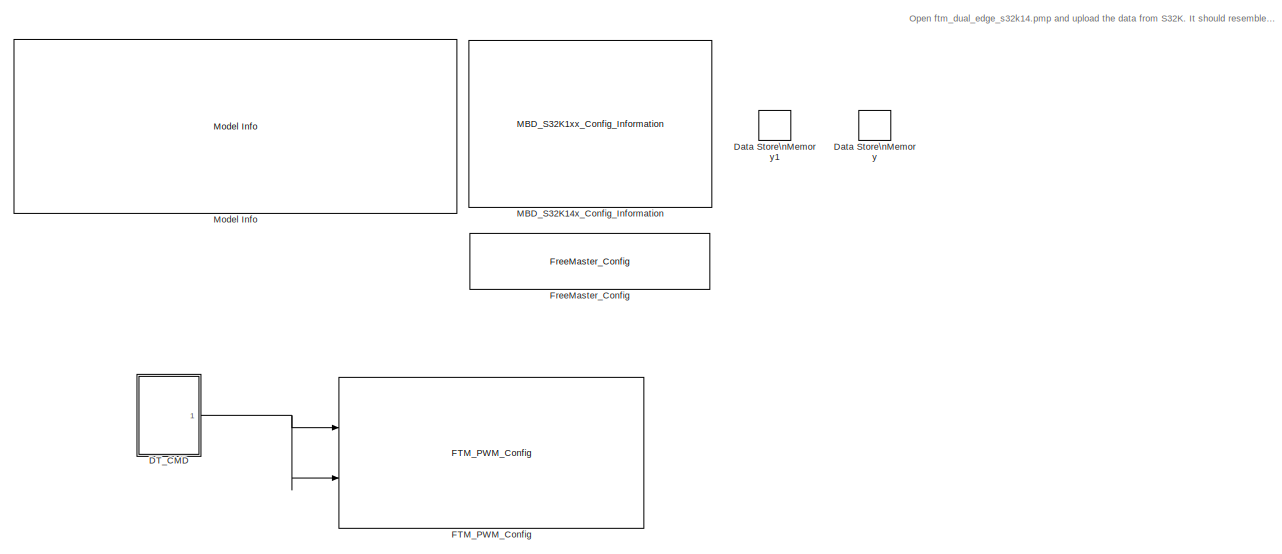
[diagram: root canvas - part 1/2, full width, top band]
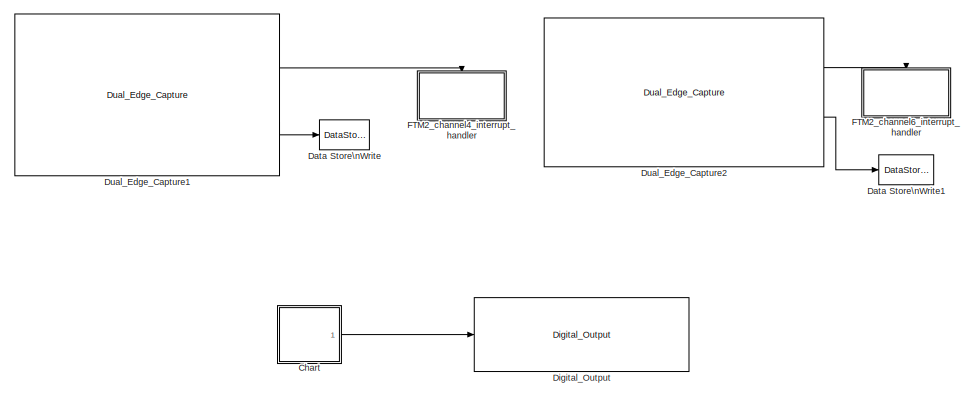
[diagram: root canvas - part 2/2, bottom center region]
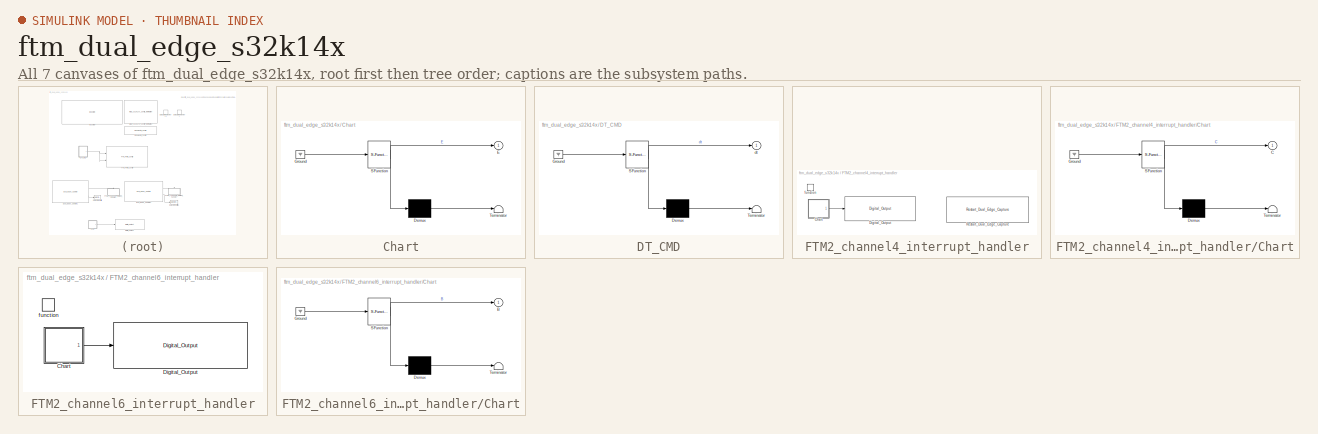
[diagram: thumbnail index - all 7 canvases of the model, root first then tree order]
MODEL ftm_dual_edge_s32k14x
KIND model
CONFIG InitFcn = mbd_s32k_consistency_checks(bdroot(gcs));
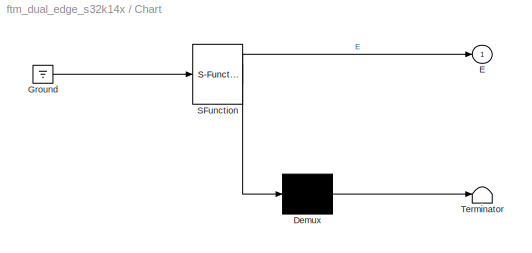
BLOCK [SubSystem] Chart
  ErrorFcn = Stateflow.Translate.translate
  PermitHierarchicalResolution = ExplicitOnly
  Ports = [0, 1]
  RequestExecContextInheritance = off
  SFBlockType = Chart
  SID = 109
  TreatAsAtomicUnit = on
  Variant = off
BLOCK [Demux] Chart/ Demux 
  Outputs = 1
  Ports = [1, 1]
  SID = 109::36
BLOCK [Outport] Chart/ E
  IconDisplay = Port number
  SID = 109::6
BLOCK [Ground] Chart/ Ground 
  SID = 109::38
BLOCK [S-Function] Chart/ SFunction 
  EnableBusSupport = off
  FunctionName = sf_sfun
  PortCounts = [1 2]
  Ports = [1, 2]
  SFcnIsStateOwnerBlock = off
  SFunctionDeploymentMode = off
  SID = 109::35
  Tag = Stateflow S-Function ftm_dual_edge_s32k14x 4
BLOCK [Terminator] Chart/ Terminator 
  SID = 109::37
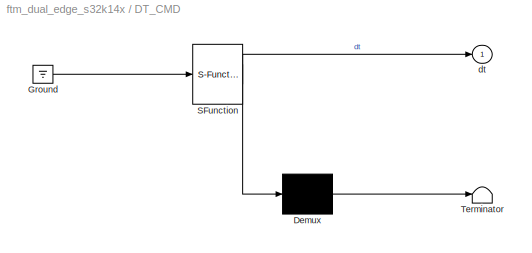
BLOCK [SubSystem] DT_CMD
  ErrorFcn = Stateflow.Translate.translate
  PermitHierarchicalResolution = ExplicitOnly
  Ports = [0, 1]
  Priority = 0
  RequestExecContextInheritance = off
  SFBlockType = Chart
  SID = 101
  TreatAsAtomicUnit = on
  Variant = off
BLOCK [Demux] DT_CMD/ Demux 
  Outputs = 1
  Ports = [1, 1]
  SID = 101::68
BLOCK [Ground] DT_CMD/ Ground 
  SID = 101::70
BLOCK [S-Function] DT_CMD/ SFunction 
  EnableBusSupport = off
  FunctionName = sf_sfun
  PortCounts = [1 2]
  Ports = [1, 2]
  SFcnIsStateOwnerBlock = off
  SFunctionDeploymentMode = off
  SID = 101::67
  Tag = Stateflow S-Function ftm_dual_edge_s32k14x 2
BLOCK [Terminator] DT_CMD/ Terminator 
  SID = 101::69
BLOCK [Outport] DT_CMD/dt
  IconDisplay = Port number
  SID = 101::5
BLOCK [DataStoreMemory] Data Store\nMemory
  DataStoreName = Period
  OutDataTypeStr = uint16
  ReadBeforeWriteMsg = warning
  SID = 105
  ShowAdditionalParam = off
  WriteAfterReadMsg = warning
  WriteAfterWriteMsg = warning
BLOCK [DataStoreMemory] Data Store\nMemory1
  DataStoreName = Pulse
  OutDataTypeStr = uint16
  ReadBeforeWriteMsg = warning
  SID = 107
  ShowAdditionalParam = off
  WriteAfterReadMsg = warning
  WriteAfterWriteMsg = warning
BLOCK [DataStoreWrite] Data Store\nWrite
  DataStoreName = Period
  Ports = [1]
  SID = 106
BLOCK [DataStoreWrite] Data Store\nWrite1
  DataStoreName = Pulse
  Ports = [1]
  SID = 108
BLOCK [Reference] Digital_Output  REF=mbd_s32k1xx_ec_toolbox/GPIO Blocks/Digital_Output
  Ports = [1]
  SID = 110
  SourceBlock = mbd_s32k1xx_ec_toolbox/GPIO Blocks/Digital_Output
  SourceType = gpio_s32k_output
  drive_strength = Low
  gpio_pin = PTD0: [PTD0 | Port D I/O]
  init_val = Low
BLOCK [Reference] Dual_Edge_Capture1  REF=mbd_s32k1xx_ec_toolbox/Motor Control Blocks/FTM Blocks/Dual_Edge_Capture
  Ports = [0, 2]
  Priority = 2
  SID = 87
  SourceBlock = mbd_s32k1xx_ec_toolbox/Motor Control Blocks/FTM Blocks/Dual_Edge_Capture
  SourceType = FTM_s32k_dual_edge_capture_block
  c_mode = One-Shot
  channel = 4-5
  filter_en = off
  filter_value = 0
  ftmModule = 2
  isrlevel = 12
  mesur = period (rising - rising)
  pinFtmCh = PTD13: [FTM2_CH4 | FTM Channel]
  prescaler = 1
BLOCK [Reference] Dual_Edge_Capture2  REF=mbd_s32k1xx_ec_toolbox/Motor Control Blocks/FTM Blocks/Dual_Edge_Capture
  Ports = [0, 2]
  Priority = 3
  SID = 89
  SourceBlock = mbd_s32k1xx_ec_toolbox/Motor Control Blocks/FTM Blocks/Dual_Edge_Capture
  SourceType = FTM_s32k_dual_edge_capture_block
  c_mode = Continuous
  channel = 6-7
  filter_en = off
  filter_value = 0
  ftmModule = 2
  isrlevel = 12
  mesur = positive pulse (rising - falling)
  pinFtmCh = PTE15: [FTM2_CH6 | FTM Channel]
  prescaler = 1
BLOCK [SubSystem] FTM2_channel4_interrupt_handler
  Ports = [0, 0, 0, 1]
  RTWSystemCode = Nonreusable function
  RequestExecContextInheritance = off
  SID = 91
  TreatAsAtomicUnit = on
  Variant = off
BLOCK [SubSystem] FTM2_channel4_interrupt_handler/Chart
  ErrorFcn = Stateflow.Translate.translate
  PermitHierarchicalResolution = ExplicitOnly
  Ports = [0, 1]
  RequestExecContextInheritance = off
  SFBlockType = Chart
  SID = 93
  TreatAsAtomicUnit = on
  Variant = off
BLOCK [Outport] FTM2_channel4_interrupt_handler/Chart/ C
  IconDisplay = Port number
  SID = 93::6
BLOCK [Demux] FTM2_channel4_interrupt_handler/Chart/ Demux 
  Outputs = 1
  Ports = [1, 1]
  SID = 93::36
BLOCK [Ground] FTM2_channel4_interrupt_handler/Chart/ Ground 
  SID = 93::38
BLOCK [S-Function] FTM2_channel4_interrupt_handler/Chart/ SFunction 
  EnableBusSupport = off
  FunctionName = sf_sfun
  PortCounts = [1 2]
  Ports = [1, 2]
  SFcnIsStateOwnerBlock = off
  SFunctionDeploymentMode = off
  SID = 93::35
  Tag = Stateflow S-Function ftm_dual_edge_s32k14x 1
BLOCK [Terminator] FTM2_channel4_interrupt_handler/Chart/ Terminator 
  SID = 93::37
BLOCK [Reference] FTM2_channel4_interrupt_handler/Digital_Output  REF=mbd_s32k1xx_ec_toolbox/GPIO Blocks/Digital_Output
  Ports = [1]
  SID = 94
  SourceBlock = mbd_s32k1xx_ec_toolbox/GPIO Blocks/Digital_Output
  SourceType = gpio_s32k_output
  drive_strength = Low
  gpio_pin = PTA16: [PTA16 | Port A I/O]
  init_val = Low
BLOCK [Reference] FTM2_channel4_interrupt_handler/Restart_Dual_Edge_Capture  REF=mbd_s32k1xx_ec_toolbox/Motor Control Blocks/FTM Blocks/Restart_Dual_Edge_Capture
  Ports = []
  Priority = 1
  SID = 114
  SourceBlock = mbd_s32k1xx_ec_toolbox/Motor Control Blocks/FTM Blocks/Restart_Dual_Edge_Capture
  SourceType = FTM_s32k_dual_edge_restart_block
  channel = 4-5
  ftmModule = 2
BLOCK [TriggerPort] FTM2_channel4_interrupt_handler/function
  Ports = []
  SID = 92
  StatesWhenEnabling = held
  TriggerType = function-call
  VariantControl = Variant
BLOCK [SubSystem] FTM2_channel6_interrupt_handler
  Ports = [0, 0, 0, 1]
  RTWSystemCode = Nonreusable function
  RequestExecContextInheritance = off
  SID = 76
  TreatAsAtomicUnit = on
  Variant = off
BLOCK [SubSystem] FTM2_channel6_interrupt_handler/Chart
  ErrorFcn = Stateflow.Translate.translate
  PermitHierarchicalResolution = ExplicitOnly
  Ports = [0, 1]
  RequestExecContextInheritance = off
  SFBlockType = Chart
  SID = 78
  TreatAsAtomicUnit = on
  Variant = off
BLOCK [Outport] FTM2_channel6_interrupt_handler/Chart/ B
  IconDisplay = Port number
  SID = 78::6
BLOCK [Demux] FTM2_channel6_interrupt_handler/Chart/ Demux 
  Outputs = 1
  Ports = [1, 1]
  SID = 78::36
BLOCK [Ground] FTM2_channel6_interrupt_handler/Chart/ Ground 
  SID = 78::38
BLOCK [S-Function] FTM2_channel6_interrupt_handler/Chart/ SFunction 
  EnableBusSupport = off
  FunctionName = sf_sfun
  PortCounts = [1 2]
  Ports = [1, 2]
  SFcnIsStateOwnerBlock = off
  SFunctionDeploymentMode = off
  SID = 78::35
  Tag = Stateflow S-Function ftm_dual_edge_s32k14x 3
BLOCK [Terminator] FTM2_channel6_interrupt_handler/Chart/ Terminator 
  SID = 78::37
BLOCK [Reference] FTM2_channel6_interrupt_handler/Digital_Output  REF=mbd_s32k1xx_ec_toolbox/GPIO Blocks/Digital_Output
  Ports = [1]
  SID = 80
  SourceBlock = mbd_s32k1xx_ec_toolbox/GPIO Blocks/Digital_Output
  SourceType = gpio_s32k_output
  drive_strength = Low
  gpio_pin = PTA15: [PTA15 | Port A I/O]
  init_val = Low
BLOCK [TriggerPort] FTM2_channel6_interrupt_handler/function
  Ports = []
  SID = 77
  StatesWhenEnabling = held
  TriggerType = function-call
  VariantControl = Variant
BLOCK [Reference] FTM_PWM_Config  REF=mbd_s32k1xx_ec_toolbox/Motor Control Blocks/FTM Blocks/FTM_PWM_Config
  Ports = [2]
  Priority = 1
  SID = 104
  SourceBlock = mbd_s32k1xx_ec_toolbox/Motor Control Blocks/FTM Blocks/FTM_PWM_Config
  SourceType = FTM_s32k_pwm_config_block
  chTrigger0 = off
  chTrigger1 = off
  chTrigger2 = off
  chTrigger3 = off
  chTrigger4 = off
  chTrigger5 = off
  chTrigger6 = off
  chTrigger7 = off
  chan0En = on
  chan0Type = Independent
  chan2En = off
  chan2Type = Independent
  chan4En = off
  chan4Type = Independent
  chan6En = off
  chan6Type = Independent
  chnMatch0 = off
  chnMatch1 = off
  chnMatch2 = off
  chnMatch3 = off
  chnMatch4 = off
  chnMatch5 = off
  chnMatch6 = off
  chnMatch7 = off
  deadtimeNs = 0
  deadtimePrescaler = Divide by 1
  deadtimeTicks = 0
  deadtimeUnits = Nanoseconds
  dutyCycleCh0 = 0.5
  dutyCycleCh1 = 0.5
  dutyCycleCh2 = 0.25
  dutyCycleCh3 = 0.25
  dutyCycleCh4 = 0.25
  dutyCycleCh5 = 0.25
  dutyCycleCh6 = 0.25
  dutyCycleCh7 = 0.25
  dutyCycleSim = off
  fault_disen_0 = off
  fault_disen_1 = off
  fault_disen_2 = off
  fault_disen_3 = off
  fault_filter_0 = off
  fault_filter_1 = off
  fault_filter_2 = off
  fault_filter_3 = off
  fault_pin_0 = None
  fault_pin_1 = None
  fault_pin_2 = None
  fault_pin_3 = None
  fault_polarity_0 = Active High
  fault_polarity_1 = Active high
  fault_polarity_2 = Active high
  fault_polarity_3 = Active high
  ftmMode = Edge-Aligned PWM
  ftmModule = 0
  ftmPeriod = 8000
  ftmPrescaler = Divide by 1
  ftmPwmUnits = Hz
  ftmSourceClock = 80 MHz
  initTrigger = off
  mcuTargetUpdate = on
  outFrequency = 10000
  outputComplem0 = Main duplicated
  outputComplem2 = Main duplicated
  outputComplem4 = Main duplicated
  outputComplem6 = Main duplicated
  outputLevel0 = Low
  outputLevel1 = Low
  outputLevel2 = Low
  outputLevel3 = Low
  outputLevel4 = Low
  outputLevel5 = Low
  outputLevel6 = Low
  outputLevel7 = Low
  pinFtmCh0 = PTC0: [FTM0_CH0 | FTM Channel]
  pinFtmCh1 = PTC1: [FTM0_CH1 | FTM Channel]
  pinFtmCh2 = PTB14: [FTM0_CH2 | FTM Channel]
  pinFtmCh3 = None
  pinFtmCh4 = PTB4: [FTM0_CH4 | FTM Channel]
  pinFtmCh5 = None
  pinFtmCh6 = PTA17: [FTM0_CH6 | FTM Channel]
  pinFtmCh7 = None
  pinPolCh0 = Active Low
  pinPolCh1 = Active High
  pinPolCh2 = Active Low
  pinPolCh3 = Active Low
  pinPolCh4 = Active Low
  pinPolCh5 = Active Low
  pinPolCh6 = Active Low
  pinPolCh7 = Active Low
  pwmFaultClearing = Fault control disabled
  pwmFaultFilterValue = 0
  pwmFaultInterrupt = off
  pwmFaultPinState = Safe Value
  pwmFaultPriority = 15
  pwmFaultProtection = off
  pwmSyncAutoClear = on
  pwmSyncCounterInitial = System Clock
  pwmSyncHwRouting = TRGMUX_FTM7
  pwmSyncInvert = System Clock
  pwmSyncMaxLoad = on
  pwmSyncMinLoad = on
  pwmSyncOutControl = System Clock
  pwmSyncOutMask = System Clock
  pwmSyncPoints = Update now
  pwmSyncTrg = Software trigger
  pwmSyncTrg0 = off
  pwmSyncTrg1 = off
  pwmSyncTrg2 = off
  reloadEnable = off
  reloadFrequency = 0
  reloadHCR = 0
  reloadHalfCycle = off
  reloadPriority = 15
  showAdvOpt = on
  startAfterInit = on
  swcontrol_enable = off
BLOCK [Reference] FreeMaster_Config  REF=mbd_s32k1xx_ec_toolbox/Utility Blocks/FreeMaster_Config
  Ports = []
  SID = 103
  SourceBlock = mbd_s32k1xx_ec_toolbox/Utility Blocks/FreeMaster_Config
  SourceType = fm_s32k_config
  baudrate = 115200
  comm_buffer_size = 255
  comm_buffer_size_auto = on
  comm_rqueue_size = 32
  comm_rqueue_size_default = on
  interface = LPUART1
  isr_prio = 15
  max_rec_vars = 8
  max_scope_vars = 8
  mode = Short Interrupt
  rec_buff_size = 1024
  rec_timebase = 0
  rec_timebase_unit = milliseconds
  rxd = PTC6: [LPUART1_RX | Receive]
  show_adv_opts = off
  txd = PTC7: [LPUART1_TX | Transmit]
  use_recorder = on
  use_scope = on
BLOCK [Reference] MBD_S32K14x_Config_Information  REF=mbd_s32k1xx_ec_toolbox/MBD_S32K1xx_Config_Information
  ADC_PcrCheckEnDis = on
  AMMCLIB_PcrCheckEnDis = on
  CMP_PcrCheckEnDis = on
  CSEc_PcrCheckEnDis = on
  ConfigParams_PcrCheckEnDis = on
  FM_PcrCheckEnDis = on
  FTM_Dual_Edge_Inputs_PcrCheckEnDis = on
  FTM_Hall_Sensor_Inputs_PcrCheckEnDis = on
  FTM_Input_Edge_Inputs_PcrCheckEnDis = on
  FTM_PWM_PcrCheckEnDis = on
  FTM_Quadrature_Inputs_PcrCheckEnDis = on
  FlexCAN_PcrCheckEnDis = on
  FlexIO_PcrCheckEnDis = on
  GPIO_InputPcrCheckEnDis = on
  GPIO_OutputPcrCheckEnDis = on
  LIN_PcrCheckEnDis = on
  LPI2C_PcrCheckEnDis = on
  LPSPI_PcrCheckEnDis = on
  LPTMR_PcrCheckEnDis = on
  LPUART_PcrCheckEnDis = on
  ModelRef_PcrCheckEnDis = on
  PDB0_PcrCheckEnDis = on
  PIT_PcrCheckEnDis = on
  Ports = []
  Priority = 0
  Profile_PcrCheckEnDis = on
  RTC_PcrCheckEnDis = on
  SBC_PcrCheckEnDis = on
  SID = 1
  SourceBlock = mbd_s32k1xx_ec_toolbox/MBD_S32K1xx_Config_Information
  SourceType = MBDTBX_EC_S32K
  WDOG_PcrCheckEnDis = on
  config_params = []
  disp_str = Target : S32K142-16KB_SRAM\nPackage : 100-pin\nSystem clock : 80 MHz\nXTAL clock : External 8 MHz\nCompiler : GCC\nTarget Type : FLASH\nDownload Code after build : (OpenSDA: E)\nStep Tick Interrupt Priority : 15
  ds_import_enable = on
  eDMA_PcrCheckEnDis = on
  gcc_target_assemble_opts = -mcpu=cortex-m4 -mthumb -mfloat-abi=hard -mfpu=fpv4-sp-d16 -g
  gcc_target_compile_opts = -mcpu=cortex-m4 -mthumb -mfloat-abi=hard -mfpu=fpv4-sp-d16 -O1 -g -gstrict-dwarf
  gcc_target_default_lcf = on
  gcc_target_link_opts = -mcpu=cortex-m4 -mthumb -mfloat-abi=hard -mfpu=fpv4-sp-d16
  gcc_target_user_lcf = S32K144_48_flash.ld
  ghs_target_assemble_opts = -cpu=cortexm4f -fpu=vfpv4_d16
  ghs_target_compile_opts = -cpu=cortexm4f -thumb -DARM_MATH_CM4 -fpu=vfpv4_d16 -fsingle -Ogeneral -Wundef -Wimplicit-int -Wshadow -Wtrigraphs --no_commons --gnu_asm -gnu99 -gdwarf-2 -G
  ghs_target_default_lcf = off
  ghs_target_link_opts = -cpu=cortexm4f -thumb -fpu=vfpv4_d16
  ghs_target_user_lcf = S32K144_48_flash.ld
  iar_target_assemble_opts = --cpu Cortex-M4F --thumb --fpu VFPv4_sp
  iar_target_compile_opts = --cpu=Cortex-M4F --thumb --fpu=VFPv4_sp -Ol -e --debug --dlib_config normal
  iar_target_default_lcf = off
  iar_target_link_opts = --no_exceptions --vfe --inline
  iar_target_user_lcf = S32K144_48_flash.icf
  mbdt_ver = 0
  mcu_steptick_prio = 15
  mcu_steptick_timer = LPIT Channel 0
  mcu_system_clock_freq = 80
  mcu_target_name = S32K144
  mcu_target_package = 64-LQFP
  mcu_target_sram_size = 48KB
  mcu_xtal_freq = External 8
  pil_download_enable = off
  pil_download_rate = 57600
  pil_opensda_drive = Custom
  pil_opensda_drive_custom = D
  pil_uart_instance = 0
  pil_uart_rx = PTA2: [LPUART0_RX | Receive]
  pil_uart_tx = PTA3: [LPUART0_TX | Transmit]
  rbl_com_port = Custom
  rbl_com_port_custom = COM1
  rbl_download_enable = on
  rbl_download_interface = OpenSDA
  rbl_restart_request = off
  rbl_start_delay = 5000000
  target_compiler = GCC
  target_memory = FLASH
BLOCK [Reference] Model Info  REF=simulink/Model-Wide\nUtilities/Model Info
  DisplayStringWithTags = Model Name: %<ModelName>\n\nDescription: %<Description>
  Frame = off
  HorizontalTextAlignment = Left
  LeftAlignmentValue = 0.02
  MaskDisplayString = Model Name: ftm_dual_edge_s32k14x\\n\\nDescription: This model shows FlexTimer Dual Edge Capture Mode.\\nConnect FTM0 Channel 0 output  PTC0 (J4.11) to FTM2 Channel 4 input PTD13 (J2.1).\\nConnect FTM0 Channel 1 output PTC1 (J5.13) to FTM2 Channel 6 input PTE15 (J5.4).<path>) pin at every its Rising edg...<+253ch>
  Ports = []
  SID = 98
  SourceBlock = simulink/Model-Wide\nUtilities/Model Info
  SourceProductBaseCode = SL
  SourceProductName = Simulink
  SourceType = CMBlock
ANNOTATION (root): \n \n Open ftm_dual_edge_s32k14.pmp and upload the data from S32K. It should resemble the image below \n \n \n Check on osciloscope the signals for PTC0 (J4.11) CH1 and PTA16(J5.3) \n \n
LINE Chart/ Demux :1 -> Chart/ Terminator :1
LINE Chart/ Ground :1 -> Chart/ SFunction :1
LINE Chart/ SFunction :1 -> Chart/ Demux :1
LINE Chart/ SFunction :2 -> Chart/ E:1
LINE Chart:1 -> Digital_Output:1
LINE DT_CMD/ Demux :1 -> DT_CMD/ Terminator :1
LINE DT_CMD/ Ground :1 -> DT_CMD/ SFunction :1
LINE DT_CMD/ SFunction :1 -> DT_CMD/ Demux :1
LINE DT_CMD/ SFunction :2 -> DT_CMD/dt:1
NET DT_CMD:1 -> FTM_PWM_Config:1, FTM_PWM_Config:2
LINE Dual_Edge_Capture1:1 -> FTM2_channel4_interrupt_handler:trigger
LINE Dual_Edge_Capture1:2 -> Data Store\nWrite:1
LINE Dual_Edge_Capture2:1 -> FTM2_channel6_interrupt_handler:trigger
LINE Dual_Edge_Capture2:2 -> Data Store\nWrite1:1
LINE FTM2_channel4_interrupt_handler/Chart/ Demux :1 -> FTM2_channel4_interrupt_handler/Chart/ Terminator :1
LINE FTM2_channel4_interrupt_handler/Chart/ Ground :1 -> FTM2_channel4_interrupt_handler/Chart/ SFunction :1
LINE FTM2_channel4_interrupt_handler/Chart/ SFunction :1 -> FTM2_channel4_interrupt_handler/Chart/ Demux :1
LINE FTM2_channel4_interrupt_handler/Chart/ SFunction :2 -> FTM2_channel4_interrupt_handler/Chart/ C:1
LINE FTM2_channel4_interrupt_handler/Chart:1 -> FTM2_channel4_interrupt_handler/Digital_Output:1
LINE FTM2_channel6_interrupt_handler/Chart/ Demux :1 -> FTM2_channel6_interrupt_handler/Chart/ Terminator :1
LINE FTM2_channel6_interrupt_handler/Chart/ Ground :1 -> FTM2_channel6_interrupt_handler/Chart/ SFunction :1
LINE FTM2_channel6_interrupt_handler/Chart/ SFunction :1 -> FTM2_channel6_interrupt_handler/Chart/ Demux :1
LINE FTM2_channel6_interrupt_handler/Chart/ SFunction :2 -> FTM2_channel6_interrupt_handler/Chart/ B:1
LINE FTM2_channel6_interrupt_handler/Chart:1 -> FTM2_channel6_interrupt_handler/Digital_Output:1
note: NET lines group one-source signal fan-out (src -> all destinations, sorted); 1:1 wires keep LINE
CHART FTM2_channel4_interrupt_handler/Chart states=2 transitions=3
  STATE_LABEL 'C'
  STATE_LABEL 'C1'
CHART DT_CMD states=2 transitions=3
  STATE_LABEL 'A\\ndu:\\ndt =0.3;\\ncntr=cntr+1;'
  STATE_LABEL 'A1\\ndu:\\ndt =0.6;\\ncntr=cntr-1;'
CHART FTM2_channel6_interrupt_handler/Chart states=2 transitions=3
  STATE_LABEL 'B'
  STATE_LABEL 'B1'
CHART Chart states=2 transitions=3
  STATE_LABEL 'E'
  STATE_LABEL 'E1'
note: 1 file-system path scrubbed to <path> (not preserved elsewhere — flat text is the only slx artifact)
